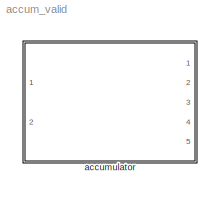
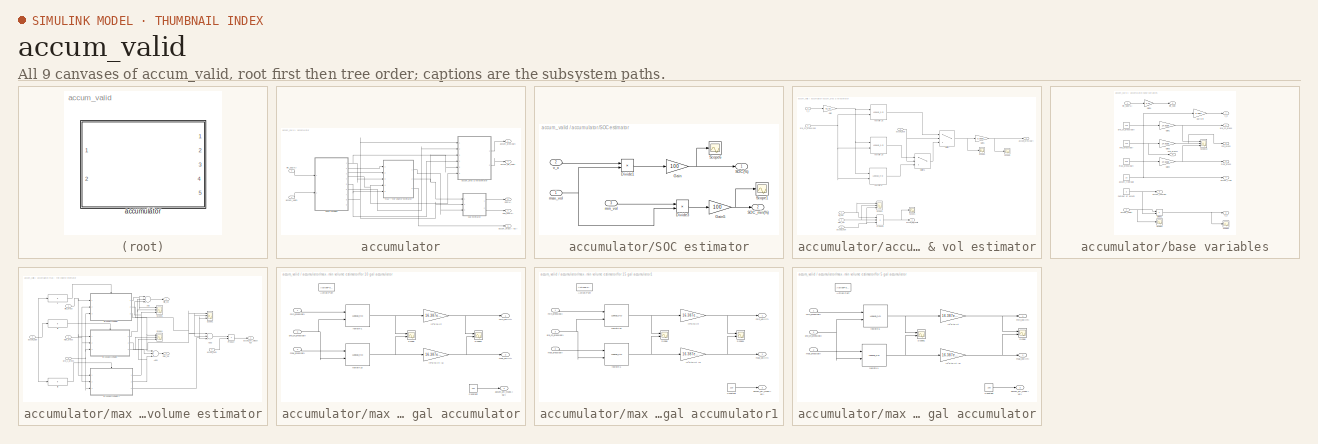
[diagram: thumbnail index - all 9 canvases of the model, root first then tree order]
MODEL accum_valid
KIND model
BLOCK [SubSystem] accumulator
  FunctionWithSeparateData = off
  MaskHideContents = off
  MinAlgLoopOccurrences = off
  Opaque = off
  Ports = [2, 5]
  PropExecContextOutsideSubsystem = off
  RTWSystemCode = Auto
  RequestExecContextInheritance = off
  SID = 1
BLOCK [SubSystem] accumulator/SOC estimator
  FunctionWithSeparateData = off
  MaskHideContents = off
  MinAlgLoopOccurrences = off
  Opaque = off
  Ports = [3, 2]
  PropExecContextOutsideSubsystem = off
  RTWSystemCode = Auto
  RequestExecContextInheritance = off
  SID = 4
BLOCK [Product] accumulator/SOC estimator/Divide1
  InputSameDT = off
  Inputs = */
  OutDataTypeStr = Inherit: Inherit via internal rule
  Ports = [2, 1]
  RndMeth = Floor
  SID = 8
  SaturateOnIntegerOverflow = off
BLOCK [Product] accumulator/SOC estimator/Divide3
  InputSameDT = off
  Inputs = */
  OutDataTypeStr = Inherit: Inherit via internal rule
  Ports = [2, 1]
  RndMeth = Floor
  SID = 9
  SaturateOnIntegerOverflow = off
BLOCK [Gain] accumulator/SOC estimator/Gain
  Gain = 100
  OutDataTypeStr = Inherit: Inherit via internal rule
  ParamDataTypeStr = Inherit: Inherit via internal rule
  SID = 10
  SaturateOnIntegerOverflow = off
BLOCK [Gain] accumulator/SOC estimator/Gain5
  Gain = 100
  OutDataTypeStr = Inherit: Inherit via internal rule
  ParamDataTypeStr = Inherit: Inherit via internal rule
  SID = 11
  SaturateOnIntegerOverflow = off
BLOCK [Outport] accumulator/SOC estimator/SOC(%)
  IconDisplay = Port number
  SID = 14
BLOCK [Outport] accumulator/SOC estimator/SOC_min(%)
  IconDisplay = Port number
  Port = 2
  SID = 15
BLOCK [Scope] accumulator/SOC estimator/Scope1
  DataFormat = StructureWithTime
  Floating = off
  NumInputPorts = 1
  Ports = [1]
  SID = 12
  SampleTime = 0
  SaveName = ScopeData6
  YMax = 12.7693
  YMin = 11.5531
BLOCK [Scope] accumulator/SOC estimator/Scope6
  DataFormat = StructureWithTime
  Floating = off
  NumInputPorts = 1
  Ports = [1]
  SID = 13
  SampleTime = 0
  SaveName = ScopeData4
BLOCK [Inport] accumulator/SOC estimator/max_vol
  IconDisplay = Port number
  SID = 5
BLOCK [Inport] accumulator/SOC estimator/min_vol
  IconDisplay = Port number
  Port = 3
  SID = 7
BLOCK [Inport] accumulator/SOC estimator/v_x
  IconDisplay = Port number
  Port = 2
  SID = 6
BLOCK [Outport] accumulator/SOC(%)
  IconDisplay = Port number
  Port = 2
  SID = 128
BLOCK [Outport] accumulator/SOC_min(%)
  IconDisplay = Port number
  Port = 3
  SID = 129
BLOCK [Outport] accumulator/accum_init_vol(lit)
  IconDisplay = Port number
  Port = 4
  SID = 130
BLOCK [Outport] accumulator/accum_mass ( kg )
  IconDisplay = Port number
  Port = 5
  SID = 131
BLOCK [SubSystem] accumulator/accum_pres & vol estimator
  FunctionWithSeparateData = off
  MaskHideContents = off
  MinAlgLoopOccurrences = off
  Opaque = off
  Ports = [6, 2]
  PropExecContextOutsideSubsystem = off
  RTWSystemCode = Auto
  RequestExecContextInheritance = off
  SID = 16
BLOCK [Gain] accumulator/accum_pres & vol estimator/Gain
  Gain = 61.02
  OutDataTypeStr = Inherit: Inherit via internal rule
  ParamDataTypeStr = Inherit: Inherit via internal rule
  SID = 23
  SaturateOnIntegerOverflow = off
BLOCK [Gain] accumulator/accum_pres & vol estimator/Gain1
  Gain = 0.0689
  OutDataTypeStr = Inherit: Inherit via internal rule
  ParamDataTypeStr = Inherit: Inherit via internal rule
  SID = 24
  SaturateOnIntegerOverflow = off
BLOCK [Product] accumulator/accum_pres & vol estimator/Product1
  InputSameDT = off
  Inputs = 3
  OutDataTypeStr = Inherit: Inherit via internal rule
  Ports = [3, 1]
  SID = 25
  SaturateOnIntegerOverflow = off
BLOCK [Scope] accumulator/accum_pres & vol estimator/Scope1
  DataFormat = StructureWithTime
  Floating = off
  NumInputPorts = 1
  Ports = [1]
  SID = 26
  SampleTime = 0
BLOCK [Scope] accumulator/accum_pres & vol estimator/Scope3
  DataFormat = StructureWithTime
  Floating = off
  NumInputPorts = 3
  Ports = [3]
  SID = 27
  SampleTime = 0
  SaveName = ScopeData2
  YMax = 5~5~5
  YMin = -5~-5~-5
BLOCK [Scope] accumulator/accum_pres & vol estimator/Scope4
  DataFormat = StructureWithTime
  Floating = off
  NumInputPorts = 1
  Ports = [1]
  SID = 28
  SampleTime = 0
  SaveName = ScopeData103
  YMax = 2825
  YMin = 2500
BLOCK [Scope] accumulator/accum_pres & vol estimator/Scope5
  DataFormat = StructureWithTime
  Floating = off
  NumInputPorts = 1
  Ports = [1]
  SID = 29
  SampleTime = 0
  SaveName = ScopeData104
  YMax = 147
  YMin = 140.5
BLOCK [Switch] accumulator/accum_pres & vol estimator/Switch
  Criteria = u2 > Threshold
  InputSameDT = off
  SID = 30
  SaturateOnIntegerOverflow = off
  Threshold = 12
BLOCK [Switch] accumulator/accum_pres & vol estimator/Switch1
  Criteria = u2 > Threshold
  InputSameDT = off
  SID = 31
  SaturateOnIntegerOverflow = off
  Threshold = 7
BLOCK [Outport] accumulator/accum_pres & vol estimator/accum_init_vol(lit)
  IconDisplay = Port number
  Port = 2
  SID = 36
BLOCK [Inport] accumulator/accum_pres & vol estimator/accum_num
  IconDisplay = Port number
  Port = 4
  SID = 20
BLOCK [Outport] accumulator/accum_pres & vol estimator/accum_pres(bar)
  IconDisplay = Port number
  SID = 35
BLOCK [Inport] accumulator/accum_pres & vol estimator/accum_type
  IconDisplay = Port number
  Port = 6
  SID = 22
BLOCK [Inport] accumulator/accum_pres & vol estimator/init_SOC
  IconDisplay = Port number
  Port = 2
  SID = 18
BLOCK [Inport] accumulator/accum_pres & vol estimator/max_vol
  IconDisplay = Port number
  Port = 3
  SID = 19
BLOCK [Inport] accumulator/accum_pres & vol estimator/pre_ch_press(psi)
  IconDisplay = Port number
  Port = 5
  SID = 21
BLOCK [Lookup_n-D] accumulator/accum_pres & vol estimator/rexroth-10
  BreakpointsForDimension1 = [0:33.8889:1559]
  BreakpointsForDimension2 = [1000,1400,2000]
  IndexSearchMethod = Binary search
  Ports = [2, 1]
  SID = 32
  Table = p_v_15
BLOCK [Lookup_n-D] accumulator/accum_pres & vol estimator/rexroth-15
  BreakpointsForDimension1 = [0,50,100,150,200,250,300,350,400,450,500,550,600,650,700,750,800,850,900,950,1000,1050,1100,1150,1200,1250,1300,1350,1400,1450,1500,1550,1600,1650,1700,1750,1800,1850,1900,1950,2000,2050,2100,2150,2200,2250,2300]
  BreakpointsForDimension2 = [1000,1400,2000]
  IndexSearchMethod = Binary search
  Ports = [2, 1]
  SID = 33
  Table = p_v_15
BLOCK [Lookup_n-D] accumulator/accum_pres & vol estimator/rexroth-5
  BreakpointsForDimension1 = [0:17.33:814]
  BreakpointsForDimension2 = [1000,1400,2000]
  IndexSearchMethod = Binary search
  Ports = [2, 1]
  SID = 34
  Table = p_v_15
BLOCK [Inport] accumulator/accum_pres & vol estimator/v_x
  IconDisplay = Port number
  SID = 17
BLOCK [Outport] accumulator/accum_pres(bar)
  IconDisplay = Port number
  SID = 127
BLOCK [Inport] accumulator/accum_vol(lit)
  IconDisplay = Port number
  SID = 2
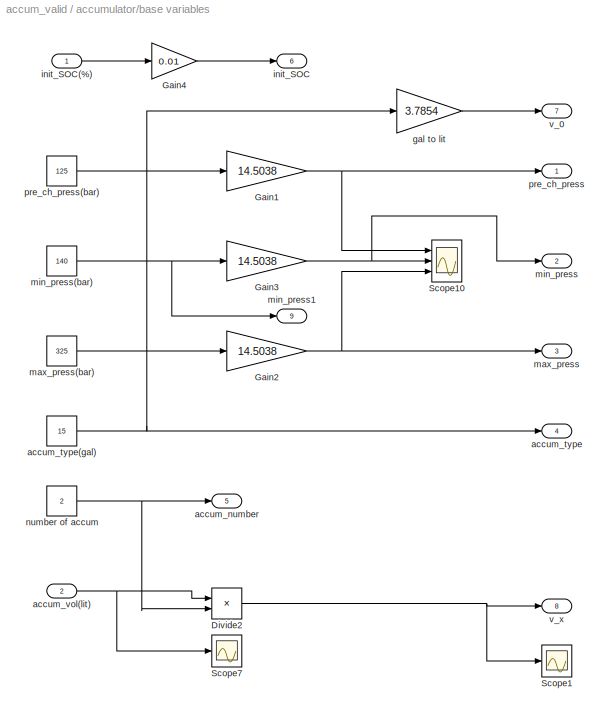
BLOCK [SubSystem] accumulator/base variables
  FunctionWithSeparateData = off
  MaskHideContents = off
  MinAlgLoopOccurrences = off
  Opaque = off
  Ports = [2, 9]
  PropExecContextOutsideSubsystem = off
  RTWSystemCode = Auto
  RequestExecContextInheritance = off
  SID = 37
BLOCK [Product] accumulator/base variables/Divide2
  InputSameDT = off
  Inputs = */
  OutDataTypeStr = Inherit: Inherit via internal rule
  Ports = [2, 1]
  RndMeth = Floor
  SID = 40
  SaturateOnIntegerOverflow = off
BLOCK [Gain] accumulator/base variables/Gain1
  Gain = 14.5038
  OutDataTypeStr = Inherit: Inherit via internal rule
  ParamDataTypeStr = Inherit: Inherit via internal rule
  SID = 41
  SaturateOnIntegerOverflow = off
BLOCK [Gain] accumulator/base variables/Gain2
  Gain = 14.5038
  OutDataTypeStr = Inherit: Inherit via internal rule
  ParamDataTypeStr = Inherit: Inherit via internal rule
  SID = 42
  SaturateOnIntegerOverflow = off
BLOCK [Gain] accumulator/base variables/Gain3
  Gain = 14.5038
  OutDataTypeStr = Inherit: Inherit via internal rule
  ParamDataTypeStr = Inherit: Inherit via internal rule
  SID = 43
  SaturateOnIntegerOverflow = off
BLOCK [Gain] accumulator/base variables/Gain4
  Gain = 0.01
  OutDataTypeStr = Inherit: Inherit via internal rule
  ParamDataTypeStr = Inherit: Inherit via internal rule
  SID = 44
  SaturateOnIntegerOverflow = off
BLOCK [Scope] accumulator/base variables/Scope1
  DataFormat = StructureWithTime
  Floating = off
  NumInputPorts = 1
  Ports = [1]
  SID = 45
  SampleTime = 0
  SaveName = ScopeData5
  YMax = 3138.33
  YMin = 3138.26
  ZoomMode = yonly
BLOCK [Scope] accumulator/base variables/Scope10
  DataFormat = StructureWithTime
  Floating = off
  NumInputPorts = 3
  Ports = [3]
  SID = 46
  SampleTime = 0
  SaveName = ScopeData1
  YMax = 2132.06~2436.64~5254
  YMin = 1929~2204.58~4753.62
BLOCK [Scope] accumulator/base variables/Scope7
  DataFormat = StructureWithTime
  Floating = off
  NumInputPorts = 1
  Ports = [1]
  SID = 47
  SampleTime = 0
  SaveName = ScopeData3
  YMax = 3138.33
  YMin = 3138.26
  ZoomMode = yonly
BLOCK [Outport] accumulator/base variables/accum_number
  IconDisplay = Port number
  Port = 5
  SID = 58
BLOCK [Outport] accumulator/base variables/accum_type
  IconDisplay = Port number
  Port = 4
  SID = 57
BLOCK [Constant] accumulator/base variables/accum_type(gal)
  SID = 48
  Value = 15
BLOCK [Inport] accumulator/base variables/accum_vol(lit)
  IconDisplay = Port number
  Port = 2
  SID = 39
BLOCK [Gain] accumulator/base variables/gal to lit
  Gain = 3.7854
  OutDataTypeStr = Inherit: Inherit via internal rule
  ParamDataTypeStr = Inherit: Inherit via internal rule
  SID = 49
  SaturateOnIntegerOverflow = off
BLOCK [Outport] accumulator/base variables/init_SOC
  IconDisplay = Port number
  Port = 6
  SID = 59
BLOCK [Inport] accumulator/base variables/init_SOC(%)
  IconDisplay = Port number
  SID = 38
BLOCK [Outport] accumulator/base variables/max_press
  IconDisplay = Port number
  Port = 3
  SID = 56
BLOCK [Constant] accumulator/base variables/max_press(bar)
  SID = 50
  Value = 325
BLOCK [Outport] accumulator/base variables/min_press
  IconDisplay = Port number
  Port = 2
  SID = 55
BLOCK [Constant] accumulator/base variables/min_press(bar)
  SID = 51
  Value = 140
BLOCK [Outport] accumulator/base variables/min_press1
  IconDisplay = Port number
  Port = 9
  SID = 62
BLOCK [Constant] accumulator/base variables/number of accum
  SID = 52
  Value = 2
BLOCK [Outport] accumulator/base variables/pre_ch_press
  IconDisplay = Port number
  SID = 54
BLOCK [Constant] accumulator/base variables/pre_ch_press(bar)
  SID = 53
  Value = 125
BLOCK [Outport] accumulator/base variables/v_0
  IconDisplay = Port number
  Port = 7
  SID = 60
BLOCK [Outport] accumulator/base variables/v_x
  IconDisplay = Port number
  Port = 8
  SID = 61
BLOCK [Inport] accumulator/init_SOC(%)
  IconDisplay = Port number
  Port = 2
  SID = 3
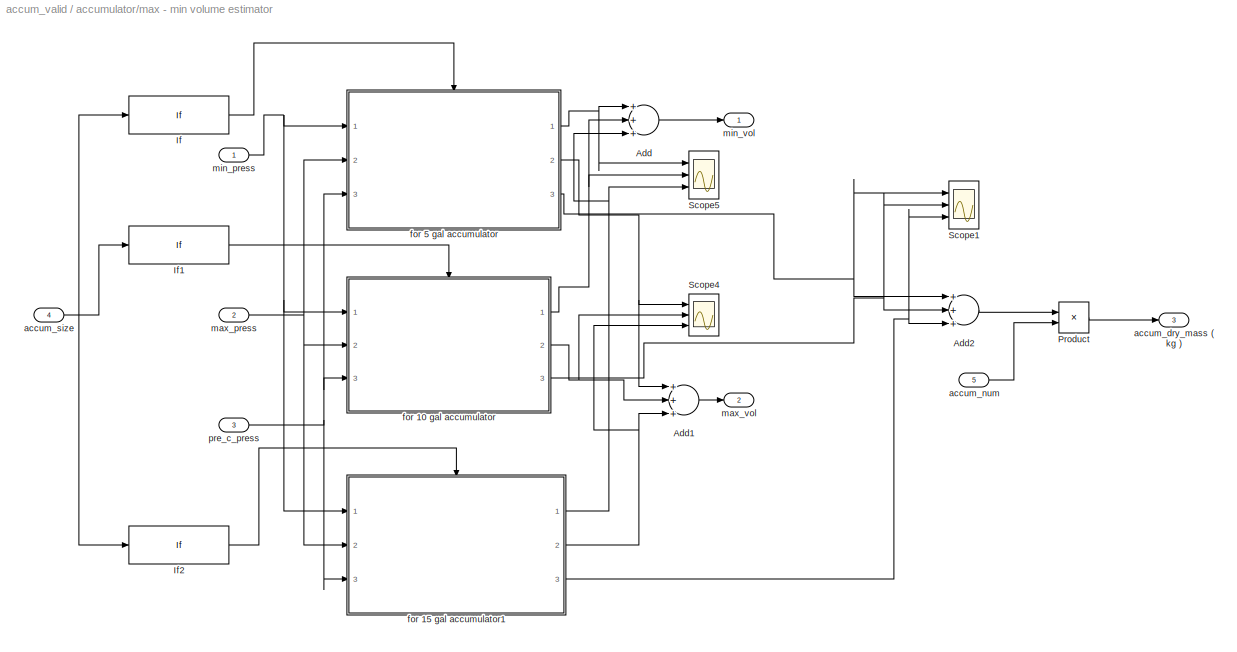
BLOCK [SubSystem] accumulator/max - min volume estimator
  FunctionWithSeparateData = off
  MaskHideContents = off
  MinAlgLoopOccurrences = off
  Opaque = off
  Ports = [5, 3]
  PropExecContextOutsideSubsystem = off
  RTWSystemCode = Auto
  RequestExecContextInheritance = off
  SID = 63
BLOCK [Sum] accumulator/max - min volume estimator/Add
  InputSameDT = off
  Inputs = +++
  OutDataTypeStr = Inherit: Inherit via internal rule
  Ports = [3, 1]
  SID = 69
  SaturateOnIntegerOverflow = off
BLOCK [Sum] accumulator/max - min volume estimator/Add1
  InputSameDT = off
  Inputs = +++
  OutDataTypeStr = Inherit: Inherit via internal rule
  Ports = [3, 1]
  SID = 70
  SaturateOnIntegerOverflow = off
BLOCK [Sum] accumulator/max - min volume estimator/Add2
  InputSameDT = off
  Inputs = +++
  OutDataTypeStr = Inherit: Inherit via internal rule
  Ports = [3, 1]
  SID = 71
  SaturateOnIntegerOverflow = off
BLOCK [If] accumulator/max - min volume estimator/If
  IfExpression = u1 == 5
  Ports = [1, 1]
  SID = 72
  ShowElse = off
BLOCK [If] accumulator/max - min volume estimator/If1
  IfExpression = u1 == 10
  Ports = [1, 1]
  SID = 73
  ShowElse = off
BLOCK [If] accumulator/max - min volume estimator/If2
  IfExpression = u1 == 15
  Ports = [1, 1]
  SID = 74
  ShowElse = off
BLOCK [Product] accumulator/max - min volume estimator/Product
  InputSameDT = off
  OutDataTypeStr = Inherit: Inherit via internal rule
  Ports = [2, 1]
  SID = 75
  SaturateOnIntegerOverflow = off
BLOCK [Scope] accumulator/max - min volume estimator/Scope1
  DataFormat = StructureWithTime
  Floating = off
  NumInputPorts = 3
  Ports = [3]
  SID = 76
  SampleTime = 0
  SaveName = ScopeData101
  YMax = 105~5~5
  YMin = 95~-5~-5
BLOCK [Scope] accumulator/max - min volume estimator/Scope4
  DataFormat = StructureWithTime
  Floating = off
  NumInputPorts = 3
  Ports = [3]
  SID = 77
  SampleTime = 0
  SaveName = ScopeData7
  YMax = 1~1~25.2423
  YMin = -1~-1~22.8383
BLOCK [Scope] accumulator/max - min volume estimator/Scope5
  DataFormat = StructureWithTime
  Floating = off
  NumInputPorts = 3
  Ports = [3]
  SID = 78
  SampleTime = 0
  SaveName = ScopeData8
  YMax = 1~1~4.98208
  YMin = -1~-1~4.5076
BLOCK [Outport] accumulator/max - min volume estimator/accum_dry_mass ( kg )
  IconDisplay = Port number
  Port = 3
  SID = 126
BLOCK [Inport] accumulator/max - min volume estimator/accum_num
  IconDisplay = Port number
  Port = 5
  SID = 68
BLOCK [Inport] accumulator/max - min volume estimator/accum_size
  IconDisplay = Port number
  Port = 4
  SID = 67
BLOCK [SubSystem] accumulator/max - min volume estimator/for 10 gal accumulator
  FunctionWithSeparateData = off
  MaskHideContents = off
  MinAlgLoopOccurrences = off
  Opaque = off
  Ports = [3, 3, 0, 0, 0, 0, 0, 1]
  PropExecContextOutsideSubsystem = off
  RTWSystemCode = Auto
  RequestExecContextInheritance = off
  SID = 79
  TreatAsAtomicUnit = on
BLOCK [ActionPort] accumulator/max - min volume estimator/for 10 gal accumulator/Action Port
  PropagateVarSize = During execution
  SID = 83
BLOCK [Constant] accumulator/max - min volume estimator/for 10 gal accumulator/Constant
  SID = 84
  Value = 152
BLOCK [Scope] accumulator/max - min volume estimator/for 10 gal accumulator/Scope
  DataFormat = StructureWithTime
  Floating = off
  NumInputPorts = 2
  Ports = [2]
  SID = 85
  SampleTime = 0
  SaveName = ScopeData40
  YMax = 5~5
  YMin = -5~-5
BLOCK [Scope] accumulator/max - min volume estimator/for 10 gal accumulator/Scope1
  DataFormat = StructureWithTime
  Floating = off
  NumInputPorts = 2
  Ports = [2]
  SID = 86
  SampleTime = 0
  SaveName = ScopeData41
  YMax = 5~5
  YMin = -5~-5
BLOCK [Outport] accumulator/max - min volume estimator/for 10 gal accumulator/accum_dry_mass ( kg )
  IconDisplay = Port number
  InitialOutput = [0]
  Port = 3
  SID = 93
BLOCK [Gain] accumulator/max - min volume estimator/for 10 gal accumulator/in^3 to lit
  Gain = 16.387e-3
  OutDataTypeStr = Inherit: Inherit via internal rule
  ParamDataTypeStr = Inherit: Inherit via internal rule
  SID = 87
  SaturateOnIntegerOverflow = off
BLOCK [Gain] accumulator/max - min volume estimator/for 10 gal accumulator/in^3 to lit (1)
  Gain = 16.387e-3
  OutDataTypeStr = Inherit: Inherit via internal rule
  ParamDataTypeStr = Inherit: Inherit via internal rule
  SID = 88
  SaturateOnIntegerOverflow = off
BLOCK [Inport] accumulator/max - min volume estimator/for 10 gal accumulator/max_press(psi)
  IconDisplay = Port number
  Port = 2
  SID = 81
BLOCK [Outport] accumulator/max - min volume estimator/for 10 gal accumulator/max_vol(lit)
  IconDisplay = Port number
  Port = 2
  SID = 92
BLOCK [Inport] accumulator/max - min volume estimator/for 10 gal accumulator/min_press(psi)
  IconDisplay = Port number
  SID = 80
BLOCK [Outport] accumulator/max - min volume estimator/for 10 gal accumulator/min_vol(lit)
  IconDisplay = Port number
  SID = 91
BLOCK [Inport] accumulator/max - min volume estimator/for 10 gal accumulator/pre_ch_press(psi)
  IconDisplay = Port number
  Port = 3
  SID = 82
BLOCK [Lookup_n-D] accumulator/max - min volume estimator/for 10 gal accumulator/rexroth-1
  BreakpointsForDimension1 = [1000,1100,1200,1300,1400,1500,1600,1700,1800,1900,2000,2100,2200,2300,2400,2500,2600,2700,2800,2900,3000,3100,3200,3300,3400,3500,3600,3700,3800,3900,4000,4100,4200,4300,4400,4500,4600,4700,4800,4900,5000,5100,5200,5300,5400,5500,5600,5700,5800,5900,6000]  <repeated x6 — deduplicated; at blocks: rexroth-1, rexroth-10, rexroth-15, rexroth-5>
  BreakpointsForDimension2 = [1000,1400,2000]
  IndexSearchMethod = Binary search
  Ports = [2, 1]
  SID = 89
  Table = v_p_10
BLOCK [Lookup_n-D] accumulator/max - min volume estimator/for 10 gal accumulator/rexroth-10
  BreakpointsForDimension2 = [1000,1400,2000]
  IndexSearchMethod = Binary search
  Ports = [2, 1]
  SID = 90
  Table = v_p_10
BLOCK [SubSystem] accumulator/max - min volume estimator/for 15 gal accumulator1
  FunctionWithSeparateData = off
  MaskHideContents = off
  MinAlgLoopOccurrences = off
  Opaque = off
  Ports = [3, 3, 0, 0, 0, 0, 0, 1]
  PropExecContextOutsideSubsystem = off
  RTWSystemCode = Auto
  RequestExecContextInheritance = off
  SID = 94
  TreatAsAtomicUnit = on
BLOCK [ActionPort] accumulator/max - min volume estimator/for 15 gal accumulator1/Action Port
  PropagateVarSize = During execution
  SID = 98
BLOCK [Constant] accumulator/max - min volume estimator/for 15 gal accumulator1/Constant
  SID = 99
  Value = 220
BLOCK [Scope] accumulator/max - min volume estimator/for 15 gal accumulator1/Scope
  DataFormat = StructureWithTime
  Floating = off
  NumInputPorts = 2
  Ports = [2]
  SID = 100
  SampleTime = 0
  SaveName = ScopeData38
  YMax = 5~5
  YMin = -5~-5
BLOCK [Scope] accumulator/max - min volume estimator/for 15 gal accumulator1/Scope1
  DataFormat = StructureWithTime
  Floating = off
  NumInputPorts = 2
  Ports = [2]
  SID = 101
  SampleTime = 0
  SaveName = ScopeData39
  YMax = 4.74484~24.0403
  YMin = 4.74484~24.0403
BLOCK [Outport] accumulator/max - min volume estimator/for 15 gal accumulator1/accum_dry_mass ( kg )
  IconDisplay = Port number
  InitialOutput = [0]
  Port = 3
  SID = 108
BLOCK [Gain] accumulator/max - min volume estimator/for 15 gal accumulator1/in^3 to lit
  Gain = 16.387e-3
  OutDataTypeStr = Inherit: Inherit via internal rule
  ParamDataTypeStr = Inherit: Inherit via internal rule
  SID = 102
  SaturateOnIntegerOverflow = off
BLOCK [Gain] accumulator/max - min volume estimator/for 15 gal accumulator1/in^3 to lit (1)
  Gain = 16.387e-3
  OutDataTypeStr = Inherit: Inherit via internal rule
  ParamDataTypeStr = Inherit: Inherit via internal rule
  SID = 103
  SaturateOnIntegerOverflow = off
BLOCK [Inport] accumulator/max - min volume estimator/for 15 gal accumulator1/max_press(psi)
  IconDisplay = Port number
  Port = 2
  SID = 96
BLOCK [Outport] accumulator/max - min volume estimator/for 15 gal accumulator1/max_vol(lit)
  IconDisplay = Port number
  Port = 2
  SID = 107
BLOCK [Inport] accumulator/max - min volume estimator/for 15 gal accumulator1/min_press(psi)
  IconDisplay = Port number
  SID = 95
BLOCK [Outport] accumulator/max - min volume estimator/for 15 gal accumulator1/min_vol(lit)
  IconDisplay = Port number
  SID = 106
BLOCK [Inport] accumulator/max - min volume estimator/for 15 gal accumulator1/pre_ch_press(psi)
  IconDisplay = Port number
  Port = 3
  SID = 97
BLOCK [Lookup_n-D] accumulator/max - min volume estimator/for 15 gal accumulator1/rexroth-1
  BreakpointsForDimension2 = [1000,1400,2000]
  IndexSearchMethod = Binary search
  Ports = [2, 1]
  SID = 104
  Table = v_p_15
BLOCK [Lookup_n-D] accumulator/max - min volume estimator/for 15 gal accumulator1/rexroth-15
  BreakpointsForDimension2 = [1000,1400,2000]
  IndexSearchMethod = Binary search
  Ports = [2, 1]
  SID = 105
  Table = v_p_15
BLOCK [SubSystem] accumulator/max - min volume estimator/for 5 gal accumulator
  FunctionWithSeparateData = off
  MaskHideContents = off
  MinAlgLoopOccurrences = off
  Opaque = off
  Ports = [3, 3, 0, 0, 0, 0, 0, 1]
  PropExecContextOutsideSubsystem = off
  RTWSystemCode = Auto
  RequestExecContextInheritance = off
  SID = 109
  TreatAsAtomicUnit = on
BLOCK [ActionPort] accumulator/max - min volume estimator/for 5 gal accumulator/Action Port
  PropagateVarSize = During execution
  SID = 113
BLOCK [Constant] accumulator/max - min volume estimator/for 5 gal accumulator/Constant
  SID = 114
  Value = 100
BLOCK [Scope] accumulator/max - min volume estimator/for 5 gal accumulator/Scope
  DataFormat = StructureWithTime
  Floating = off
  NumInputPorts = 2
  Ports = [2]
  SID = 115
  SampleTime = 0
  SaveName = ScopeData27
  YMax = 5~5
  YMin = -5~-5
  ZoomMode = yonly
BLOCK [Scope] accumulator/max - min volume estimator/for 5 gal accumulator/Scope1
  DataFormat = StructureWithTime
  Floating = off
  NumInputPorts = 2
  Ports = [2]
  SID = 116
  SampleTime = 0
  SaveName = ScopeData28
  YMax = 61.8714~626.852
  YMin = 61.8714~626.852
  ZoomMode = yonly
BLOCK [Outport] accumulator/max - min volume estimator/for 5 gal accumulator/accum_dry_mass ( kg )
  IconDisplay = Port number
  InitialOutput = [0]
  Port = 3
  SID = 123
BLOCK [Gain] accumulator/max - min volume estimator/for 5 gal accumulator/in^3 to lit
  Gain = 16.387e-3
  OutDataTypeStr = Inherit: Inherit via internal rule
  ParamDataTypeStr = Inherit: Inherit via internal rule
  SID = 117
  SaturateOnIntegerOverflow = off
BLOCK [Gain] accumulator/max - min volume estimator/for 5 gal accumulator/in^3 to lit (1)
  Gain = 16.387e-3
  OutDataTypeStr = Inherit: Inherit via internal rule
  ParamDataTypeStr = Inherit: Inherit via internal rule
  SID = 118
  SaturateOnIntegerOverflow = off
BLOCK [Inport] accumulator/max - min volume estimator/for 5 gal accumulator/max_press(psi)
  IconDisplay = Port number
  Port = 2
  SID = 111
BLOCK [Outport] accumulator/max - min volume estimator/for 5 gal accumulator/max_vol(lit)
  IconDisplay = Port number
  Port = 2
  SID = 122
BLOCK [Inport] accumulator/max - min volume estimator/for 5 gal accumulator/min_press(psi)
  IconDisplay = Port number
  SID = 110
BLOCK [Outport] accumulator/max - min volume estimator/for 5 gal accumulator/min_vol(lit)
  IconDisplay = Port number
  SID = 121
BLOCK [Inport] accumulator/max - min volume estimator/for 5 gal accumulator/pre_ch_press(psi)
  IconDisplay = Port number
  Port = 3
  SID = 112
BLOCK [Lookup_n-D] accumulator/max - min volume estimator/for 5 gal accumulator/rexroth-1
  BreakpointsForDimension2 = [1000,1400,2000]
  IndexSearchMethod = Binary search
  Ports = [2, 1]
  SID = 119
  Table = v_p_5
BLOCK [Lookup_n-D] accumulator/max - min volume estimator/for 5 gal accumulator/rexroth-5
  BreakpointsForDimension2 = [1000,1400,2000]
  IndexSearchMethod = Binary search
  Ports = [2, 1]
  SID = 120
  Table = v_p_5
BLOCK [Inport] accumulator/max - min volume estimator/max_press
  IconDisplay = Port number
  Port = 2
  SID = 65
BLOCK [Outport] accumulator/max - min volume estimator/max_vol
  IconDisplay = Port number
  Port = 2
  SID = 125
BLOCK [Inport] accumulator/max - min volume estimator/min_press
  IconDisplay = Port number
  SID = 64
BLOCK [Outport] accumulator/max - min volume estimator/min_vol
  IconDisplay = Port number
  SID = 124
BLOCK [Inport] accumulator/max - min volume estimator/pre_c_press
  IconDisplay = Port number
  Port = 3
  SID = 66
LINE accumulator/SOC estimator/Divide1:1 -> accumulator/SOC estimator/Gain:1
LINE accumulator/SOC estimator/Divide3:1 -> accumulator/SOC estimator/Gain5:1
NET accumulator/SOC estimator/Gain5:1 -> accumulator/SOC estimator/SOC_min(%):1, accumulator/SOC estimator/Scope1:1
NET accumulator/SOC estimator/Gain:1 -> accumulator/SOC estimator/SOC(%):1, accumulator/SOC estimator/Scope6:1
NET accumulator/SOC estimator/max_vol:1 -> accumulator/SOC estimator/Divide1:2, accumulator/SOC estimator/Divide3:2
LINE accumulator/SOC estimator/min_vol:1 -> accumulator/SOC estimator/Divide3:1
LINE accumulator/SOC estimator/v_x:1 -> accumulator/SOC estimator/Divide1:1
LINE accumulator/SOC estimator:1 -> accumulator/SOC(%):1
LINE accumulator/SOC estimator:2 -> accumulator/SOC_min(%):1
NET accumulator/accum_pres & vol estimator/Gain1:1 -> accumulator/accum_pres & vol estimator/Scope5:1, accumulator/accum_pres & vol estimator/accum_pres(bar):1
NET accumulator/accum_pres & vol estimator/Gain:1 -> accumulator/accum_pres & vol estimator/rexroth-10:1, accumulator/accum_pres & vol estimator/rexroth-15:1, accumulator/accum_pres & vol estimator/rexroth-5:1
NET accumulator/accum_pres & vol estimator/Product1:1 -> accumulator/accum_pres & vol estimator/Scope1:1, accumulator/accum_pres & vol estimator/accum_init_vol(lit):1
LINE accumulator/accum_pres & vol estimator/Switch1:1 -> accumulator/accum_pres & vol estimator/Switch:3
NET accumulator/accum_pres & vol estimator/Switch:1 -> accumulator/accum_pres & vol estimator/Gain1:1, accumulator/accum_pres & vol estimator/Scope4:1
NET accumulator/accum_pres & vol estimator/accum_num:1 -> accumulator/accum_pres & vol estimator/Product1:3, accumulator/accum_pres & vol estimator/Scope3:3
NET accumulator/accum_pres & vol estimator/accum_type:1 -> accumulator/accum_pres & vol estimator/Switch1:2, accumulator/accum_pres & vol estimator/Switch:2
NET accumulator/accum_pres & vol estimator/init_SOC:1 -> accumulator/accum_pres & vol estimator/Product1:1, accumulator/accum_pres & vol estimator/Scope3:1
NET accumulator/accum_pres & vol estimator/max_vol:1 -> accumulator/accum_pres & vol estimator/Product1:2, accumulator/accum_pres & vol estimator/Scope3:2
NET accumulator/accum_pres & vol estimator/pre_ch_press(psi):1 -> accumulator/accum_pres & vol estimator/rexroth-10:2, accumulator/accum_pres & vol estimator/rexroth-15:2, accumulator/accum_pres & vol estimator/rexroth-5:2
LINE accumulator/accum_pres & vol estimator/rexroth-10:1 -> accumulator/accum_pres & vol estimator/Switch1:1
LINE accumulator/accum_pres & vol estimator/rexroth-15:1 -> accumulator/accum_pres & vol estimator/Switch:1
LINE accumulator/accum_pres & vol estimator/rexroth-5:1 -> accumulator/accum_pres & vol estimator/Switch1:3
LINE accumulator/accum_pres & vol estimator/v_x:1 -> accumulator/accum_pres & vol estimator/Gain:1
LINE accumulator/accum_pres & vol estimator:1 -> accumulator/accum_pres(bar):1
LINE accumulator/accum_pres & vol estimator:2 -> accumulator/accum_init_vol(lit):1
LINE accumulator/accum_vol(lit):1 -> accumulator/base variables:2
NET accumulator/base variables/Divide2:1 -> accumulator/base variables/Scope1:1, accumulator/base variables/v_x:1
NET accumulator/base variables/Gain1:1 -> accumulator/base variables/Scope10:1, accumulator/base variables/pre_ch_press:1
NET accumulator/base variables/Gain2:1 -> accumulator/base variables/Scope10:3, accumulator/base variables/max_press:1
NET accumulator/base variables/Gain3:1 -> accumulator/base variables/Scope10:2, accumulator/base variables/min_press:1
LINE accumulator/base variables/Gain4:1 -> accumulator/base variables/init_SOC:1
NET accumulator/base variables/accum_type(gal):1 -> accumulator/base variables/accum_type:1, accumulator/base variables/gal to lit:1
NET accumulator/base variables/accum_vol(lit):1 -> accumulator/base variables/Divide2:1, accumulator/base variables/Scope7:1
LINE accumulator/base variables/gal to lit:1 -> accumulator/base variables/v_0:1
LINE accumulator/base variables/init_SOC(%):1 -> accumulator/base variables/Gain4:1
LINE accumulator/base variables/max_press(bar):1 -> accumulator/base variables/Gain2:1
NET accumulator/base variables/min_press(bar):1 -> accumulator/base variables/Gain3:1, accumulator/base variables/min_press1:1
NET accumulator/base variables/number of accum:1 -> accumulator/base variables/Divide2:2, accumulator/base variables/accum_number:1
LINE accumulator/base variables/pre_ch_press(bar):1 -> accumulator/base variables/Gain1:1
NET accumulator/base variables:1 -> accumulator/accum_pres & vol estimator:5, accumulator/max - min volume estimator:3
LINE accumulator/base variables:2 -> accumulator/max - min volume estimator:1
LINE accumulator/base variables:3 -> accumulator/max - min volume estimator:2
NET accumulator/base variables:4 -> accumulator/accum_pres & vol estimator:6, accumulator/max - min volume estimator:4
NET accumulator/base variables:5 -> accumulator/accum_pres & vol estimator:4, accumulator/max - min volume estimator:5
LINE accumulator/base variables:6 -> accumulator/accum_pres & vol estimator:2
NET accumulator/base variables:8 -> accumulator/SOC estimator:2, accumulator/accum_pres & vol estimator:1
LINE accumulator/init_SOC(%):1 -> accumulator/base variables:1
LINE accumulator/max - min volume estimator/Add1:1 -> accumulator/max - min volume estimator/max_vol:1
LINE accumulator/max - min volume estimator/Add2:1 -> accumulator/max - min volume estimator/Product:1
LINE accumulator/max - min volume estimator/Add:1 -> accumulator/max - min volume estimator/min_vol:1
LINE accumulator/max - min volume estimator/If1:1 -> accumulator/max - min volume estimator/for 10 gal accumulator:ifaction
LINE accumulator/max - min volume estimator/If2:1 -> accumulator/max - min volume estimator/for 15 gal accumulator1:ifaction
LINE accumulator/max - min volume estimator/If:1 -> accumulator/max - min volume estimator/for 5 gal accumulator:ifaction
LINE accumulator/max - min volume estimator/Product:1 -> accumulator/max - min volume estimator/accum_dry_mass ( kg ):1
LINE accumulator/max - min volume estimator/accum_num:1 -> accumulator/max - min volume estimator/Product:2
NET accumulator/max - min volume estimator/accum_size:1 -> accumulator/max - min volume estimator/If1:1, accumulator/max - min volume estimator/If2:1, accumulator/max - min volume estimator/If:1
LINE accumulator/max - min volume estimator/for 10 gal accumulator/Constant:1 -> accumulator/max - min volume estimator/for 10 gal accumulator/accum_dry_mass ( kg ):1
NET accumulator/max - min volume estimator/for 10 gal accumulator/in^3 to lit (1):1 -> accumulator/max - min volume estimator/for 10 gal accumulator/Scope1:2, accumulator/max - min volume estimator/for 10 gal accumulator/max_vol(lit):1
NET accumulator/max - min volume estimator/for 10 gal accumulator/in^3 to lit:1 -> accumulator/max - min volume estimator/for 10 gal accumulator/Scope1:1, accumulator/max - min volume estimator/for 10 gal accumulator/min_vol(lit):1
LINE accumulator/max - min volume estimator/for 10 gal accumulator/max_press(psi):1 -> accumulator/max - min volume estimator/for 10 gal accumulator/rexroth-10:1
LINE accumulator/max - min volume estimator/for 10 gal accumulator/min_press(psi):1 -> accumulator/max - min volume estimator/for 10 gal accumulator/rexroth-1:1
NET accumulator/max - min volume estimator/for 10 gal accumulator/pre_ch_press(psi):1 -> accumulator/max - min volume estimator/for 10 gal accumulator/rexroth-10:2, accumulator/max - min volume estimator/for 10 gal accumulator/rexroth-1:2
NET accumulator/max - min volume estimator/for 10 gal accumulator/rexroth-10:1 -> accumulator/max - min volume estimator/for 10 gal accumulator/Scope:2, accumulator/max - min volume estimator/for 10 gal accumulator/in^3 to lit (1):1
NET accumulator/max - min volume estimator/for 10 gal accumulator/rexroth-1:1 -> accumulator/max - min volume estimator/for 10 gal accumulator/Scope:1, accumulator/max - min volume estimator/for 10 gal accumulator/in^3 to lit:1
NET accumulator/max - min volume estimator/for 10 gal accumulator:1 -> accumulator/max - min volume estimator/Add:2, accumulator/max - min volume estimator/Scope5:2
NET accumulator/max - min volume estimator/for 10 gal accumulator:2 -> accumulator/max - min volume estimator/Add1:2, accumulator/max - min volume estimator/Scope4:2
NET accumulator/max - min volume estimator/for 10 gal accumulator:3 -> accumulator/max - min volume estimator/Add2:2, accumulator/max - min volume estimator/Scope1:2
LINE accumulator/max - min volume estimator/for 15 gal accumulator1/Constant:1 -> accumulator/max - min volume estimator/for 15 gal accumulator1/accum_dry_mass ( kg ):1
NET accumulator/max - min volume estimator/for 15 gal accumulator1/in^3 to lit (1):1 -> accumulator/max - min volume estimator/for 15 gal accumulator1/Scope1:2, accumulator/max - min volume estimator/for 15 gal accumulator1/max_vol(lit):1
NET accumulator/max - min volume estimator/for 15 gal accumulator1/in^3 to lit:1 -> accumulator/max - min volume estimator/for 15 gal accumulator1/Scope1:1, accumulator/max - min volume estimator/for 15 gal accumulator1/min_vol(lit):1
LINE accumulator/max - min volume estimator/for 15 gal accumulator1/max_press(psi):1 -> accumulator/max - min volume estimator/for 15 gal accumulator1/rexroth-1:1
LINE accumulator/max - min volume estimator/for 15 gal accumulator1/min_press(psi):1 -> accumulator/max - min volume estimator/for 15 gal accumulator1/rexroth-15:1
NET accumulator/max - min volume estimator/for 15 gal accumulator1/pre_ch_press(psi):1 -> accumulator/max - min volume estimator/for 15 gal accumulator1/rexroth-15:2, accumulator/max - min volume estimator/for 15 gal accumulator1/rexroth-1:2
NET accumulator/max - min volume estimator/for 15 gal accumulator1/rexroth-15:1 -> accumulator/max - min volume estimator/for 15 gal accumulator1/Scope:1, accumulator/max - min volume estimator/for 15 gal accumulator1/in^3 to lit:1
NET accumulator/max - min volume estimator/for 15 gal accumulator1/rexroth-1:1 -> accumulator/max - min volume estimator/for 15 gal accumulator1/Scope:2, accumulator/max - min volume estimator/for 15 gal accumulator1/in^3 to lit (1):1
NET accumulator/max - min volume estimator/for 15 gal accumulator1:1 -> accumulator/max - min volume estimator/Add:3, accumulator/max - min volume estimator/Scope5:3
NET accumulator/max - min volume estimator/for 15 gal accumulator1:2 -> accumulator/max - min volume estimator/Add1:3, accumulator/max - min volume estimator/Scope4:3
NET accumulator/max - min volume estimator/for 15 gal accumulator1:3 -> accumulator/max - min volume estimator/Add2:3, accumulator/max - min volume estimator/Scope1:3
LINE accumulator/max - min volume estimator/for 5 gal accumulator/Constant:1 -> accumulator/max - min volume estimator/for 5 gal accumulator/accum_dry_mass ( kg ):1
NET accumulator/max - min volume estimator/for 5 gal accumulator/in^3 to lit (1):1 -> accumulator/max - min volume estimator/for 5 gal accumulator/Scope:2, accumulator/max - min volume estimator/for 5 gal accumulator/max_vol(lit):1
NET accumulator/max - min volume estimator/for 5 gal accumulator/in^3 to lit:1 -> accumulator/max - min volume estimator/for 5 gal accumulator/Scope:1, accumulator/max - min volume estimator/for 5 gal accumulator/min_vol(lit):1
LINE accumulator/max - min volume estimator/for 5 gal accumulator/max_press(psi):1 -> accumulator/max - min volume estimator/for 5 gal accumulator/rexroth-1:1
LINE accumulator/max - min volume estimator/for 5 gal accumulator/min_press(psi):1 -> accumulator/max - min volume estimator/for 5 gal accumulator/rexroth-5:1
NET accumulator/max - min volume estimator/for 5 gal accumulator/pre_ch_press(psi):1 -> accumulator/max - min volume estimator/for 5 gal accumulator/rexroth-1:2, accumulator/max - min volume estimator/for 5 gal accumulator/rexroth-5:2
NET accumulator/max - min volume estimator/for 5 gal accumulator/rexroth-1:1 -> accumulator/max - min volume estimator/for 5 gal accumulator/Scope1:2, accumulator/max - min volume estimator/for 5 gal accumulator/in^3 to lit (1):1
NET accumulator/max - min volume estimator/for 5 gal accumulator/rexroth-5:1 -> accumulator/max - min volume estimator/for 5 gal accumulator/Scope1:1, accumulator/max - min volume estimator/for 5 gal accumulator/in^3 to lit:1
NET accumulator/max - min volume estimator/for 5 gal accumulator:1 -> accumulator/max - min volume estimator/Add:1, accumulator/max - min volume estimator/Scope5:1
NET accumulator/max - min volume estimator/for 5 gal accumulator:2 -> accumulator/max - min volume estimator/Add1:1, accumulator/max - min volume estimator/Scope4:1
NET accumulator/max - min volume estimator/for 5 gal accumulator:3 -> accumulator/max - min volume estimator/Add2:1, accumulator/max - min volume estimator/Scope1:1
NET accumulator/max - min volume estimator/max_press:1 -> accumulator/max - min volume estimator/for 10 gal accumulator:2, accumulator/max - min volume estimator/for 15 gal accumulator1:2, accumulator/max - min volume estimator/for 5 gal accumulator:2
NET accumulator/max - min volume estimator/min_press:1 -> accumulator/max - min volume estimator/for 10 gal accumulator:1, accumulator/max - min volume estimator/for 15 gal accumulator1:1, accumulator/max - min volume estimator/for 5 gal accumulator:1
NET accumulator/max - min volume estimator/pre_c_press:1 -> accumulator/max - min volume estimator/for 10 gal accumulator:3, accumulator/max - min volume estimator/for 15 gal accumulator1:3, accumulator/max - min volume estimator/for 5 gal accumulator:3
LINE accumulator/max - min volume estimator:1 -> accumulator/SOC estimator:3
NET accumulator/max - min volume estimator:2 -> accumulator/SOC estimator:1, accumulator/accum_pres & vol estimator:3
LINE accumulator/max - min volume estimator:3 -> accumulator/accum_mass ( kg ):1
note: NET lines group one-source signal fan-out (src -> all destinations, sorted); 1:1 wires keep LINE
